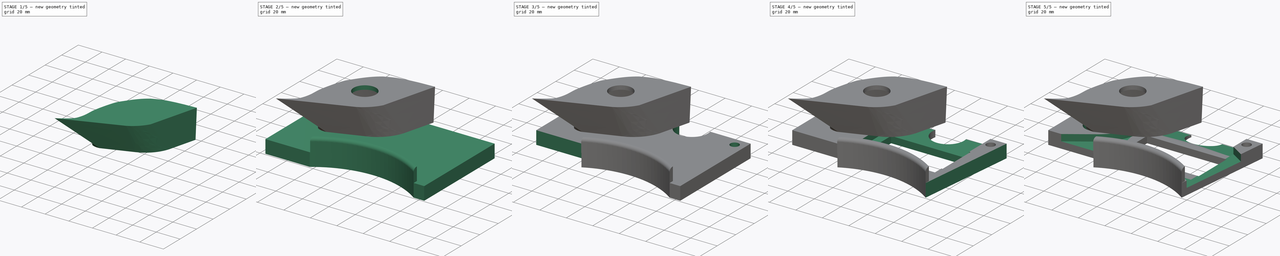
[diagram: build sequence overview — one tinted view per stage of 5, left to right]
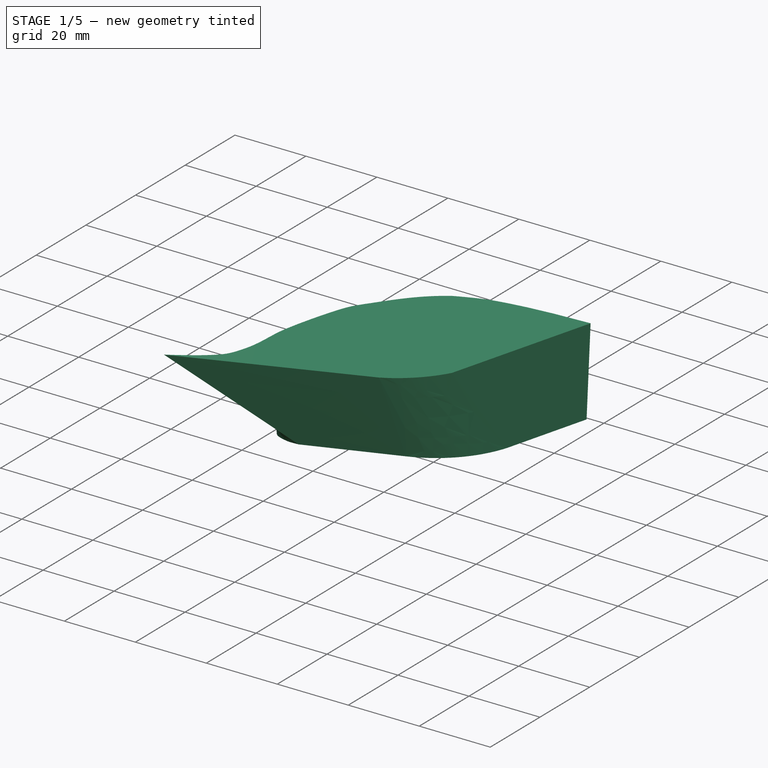
[diagram: stage 1 of 5 — iso view after this stage's code; geometry added in this stage tinted green]
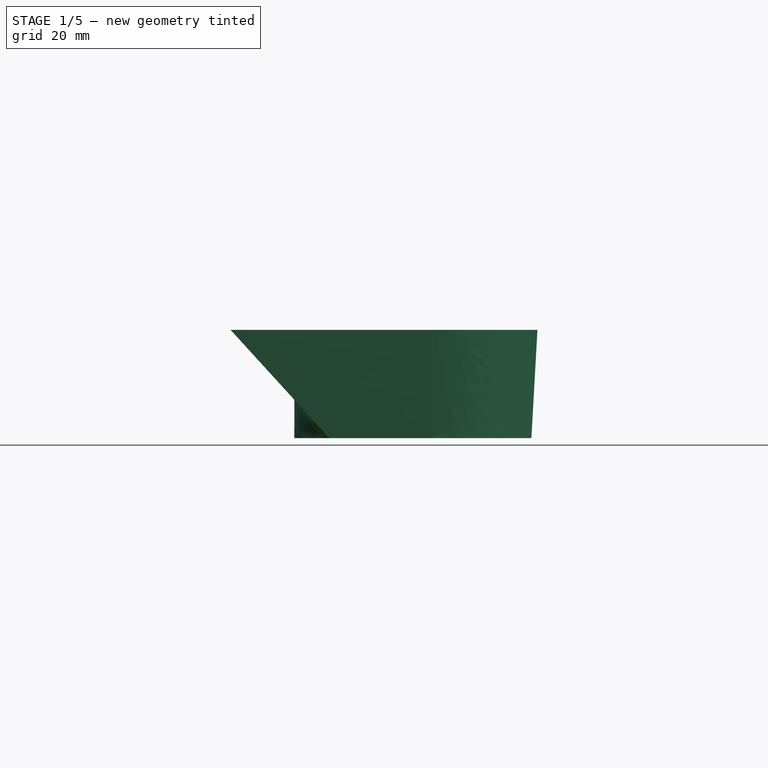
[diagram: stage 1 of 5 — front view after this stage's code; geometry added in this stage tinted green]
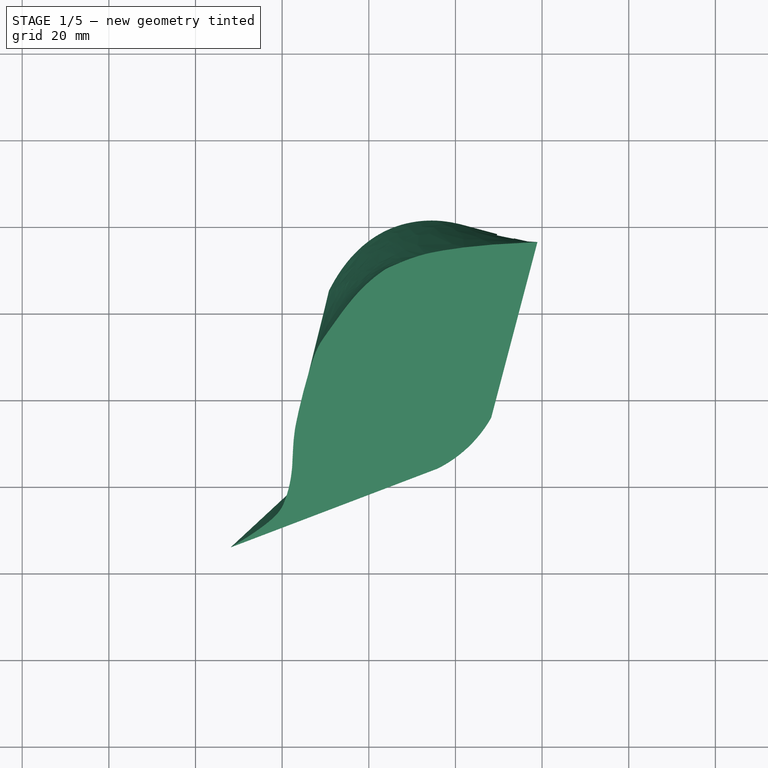
[diagram: stage 1 of 5 — top view after this stage's code; geometry added in this stage tinted green]
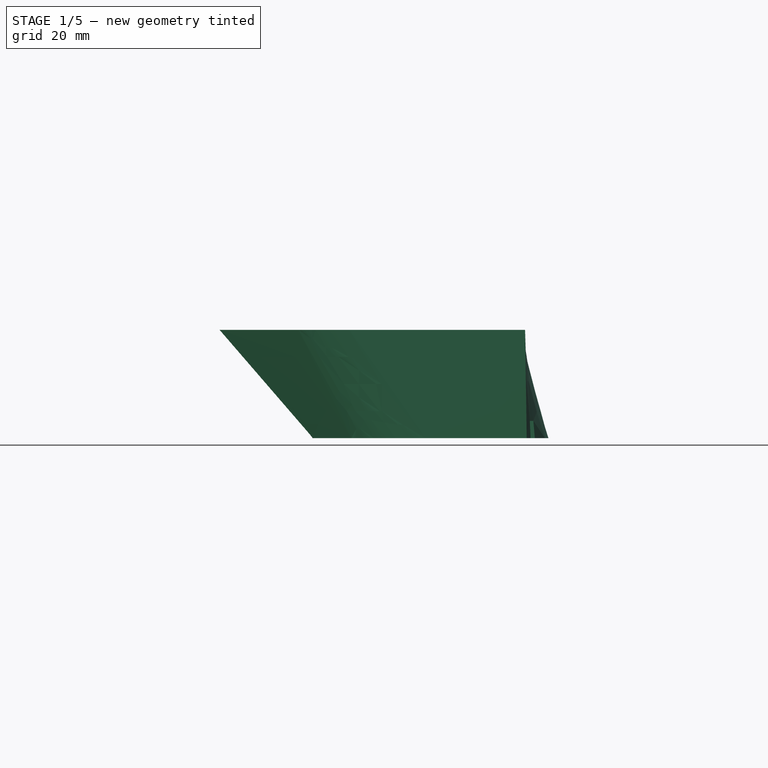
[diagram: stage 1 of 5 — right view after this stage's code; geometry added in this stage tinted green]
FCSTD DOCUMENT  (FreeCAD 1.0R39109 (Git))
Label: poweron button
License: All rights reserved
LicenseURL: http://en.wikipedia.org/wiki/All_rights_reserved
objects: PartDesign::SubtractiveCylinder×10, PartDesign::SubtractiveBox×9, Sketcher::SketchObject×8, PartDesign::AdditiveLoft×2, PartDesign::Pocket×2, PartDesign::Pad×2, PartDesign::Fillet×2, PartDesign::Body×2
note: 99 computed .brp shape members not serialized (recipe doc carries the construction recipe); baked Part::Feature solids carry a one-line shape summary decoded from their .brp

FEATURE [Sketcher::SketchObject] Sketch008  label="button Plate bottom"
  ArcFitTolerance = 1e-06
  AttachmentOffset = pos=(0,0,10) rot=(0,0,1;0rad)
  AttachmentSupport = -> [XY_Plane004]
  FullyConstrained = true
  MakeInternals = false
  MapMode = 5
  Placement = pos=(0,0,10) rot=(0,0,1;0rad)
  sketch-geometry (24):
    g0: ArcOfCircle CenterX=-34.0725 CenterY=81.318 CenterZ=0 NormalX=0 NormalY=0 NormalZ=1 AngleXU=0 Radius=26.76 StartAngle=5.05352 EndAngle=5.97418
    g1: LineSegment StartX=-8.58 StartY=73.18 StartZ=0 EndX=-2.47 EndY=96.55 EndZ=0
    g2: LineSegment StartX=-25.12 StartY=56.1 StartZ=0 EndX=-49.1 EndY=47.25 EndZ=0
    g3: Circle [constr] CenterX=-2.47 CenterY=96.55 CenterZ=0 NormalX=0 NormalY=0 NormalZ=1 AngleXU=0 Radius=1
    g4: Circle [constr] CenterX=-14.91 CenterY=99.1391 CenterZ=0 NormalX=0 NormalY=0 NormalZ=1 AngleXU=0 Radius=1
    g5: Circle [constr] CenterX=-23.98 CenterY=104.45 CenterZ=0 NormalX=0 NormalY=0 NormalZ=1 AngleXU=0 Radius=1
    g6: BSplineCurve PolesCount=12 KnotsCount=8 Degree=3 IsPeriodic=0
    g7-g12: GeomPoint [constr] x6 (B-spline internal-alignment scaffolding for g6; pole/knot coordinates omitted)
    g13-g18: Circle [constr] x6 (B-spline internal-alignment scaffolding for g6; pole/knot coordinates omitted)
    g19: GeomPoint [constr] X=-52.86 Y=47.33 Z=0
    g20: Circle [constr] CenterX=-52.92 CenterY=70.3832 CenterZ=0 NormalX=0 NormalY=0 NormalZ=1 AngleXU=0 Radius=1
    g21: Circle [constr] CenterX=-55.3066 CenterY=60.2815 CenterZ=0 NormalX=0 NormalY=0 NormalZ=1 AngleXU=0 Radius=1
    g22: Circle [constr] CenterX=-58.5146 CenterY=49.6721 CenterZ=0 NormalX=0 NormalY=0 NormalZ=1 AngleXU=0 Radius=1
    g23: GeomPoint [constr] X=-54.93 Y=62.04 Z=0
  constraints (60):
    c: Coincident(g1,g0)
    c: Coincident(g2,g0)
    c: Weight(g3) = 1
    c: Equal(g3,g4)
    c: Equal(g3,g5)
    c: InternalAlignment(g3,g6)
    c: InternalAlignment(g4,g6)
    c: InternalAlignment(g5,g6)
    c: InternalAlignment(g7-g12 -> g6) x6
    c: Coincident(g3,g1)
    c: InternalAlignment(g13,g6)
    c: Equal(g13,g3)
    c: InternalAlignment(g14,g6)
    c: Equal(g14,g3)
    c: InternalAlignment(g15,g6)
    c: Equal(g15,g3)
    c: InternalAlignment(g16,g6)
    c: Equal(g16,g3)
    c: InternalAlignment(g17,g6)
    c: Equal(g17,g3)
    c: InternalAlignment(g18,g6)
    c: Equal(g18,g3)
    c: InternalAlignment(g19,g6)
    c: InternalAlignment(g20,g6)
    c: Equal(g20,g3)
    c: InternalAlignment(g21,g6)
    c: Equal(g21,g3)
    c: InternalAlignment(g22,g6)
    c: Equal(g22,g3)
    c: InternalAlignment(g23,g6)
    c: Coincident(g2,g6)
    c: DistanceX(g6,g-1) = 2.47
    c: DistanceY(g-1,g6) = 96.55
    c: DistanceY(g-1,g0) = 73.18
    c: DistanceX(g0,g-1) = 8.58
    c: DistanceY(g-1,g0) = 56.1
    c: DistanceX(g0,g-1) = 25.12
    c: Radius(g0) = 26.76
    c: DistanceX(g8,g-1) = 26.41
    c: DistanceY(g6,g8) = 5
    c: DistanceX(g4,g6) = 12.44
    c: DistanceX(g5,g4) = 9.07
    c: Distance(g4,g8) = 11.75
    c: DistanceY(g8,g5) = 2.9
    c: DistanceX(g9,g-1) = 49.22
    c: DistanceY(g-1,g9) = 85.31
    c: DistanceY(g-1,g2) = 47.25
    c: DistanceX(g2,g-1) = 49.1
    c: DistanceY(g-1,g19) = 47.33
    c: DistanceX(g19,g2) = 3.76
    c: DistanceY(g-1,g18) = 47.06
    c: DistanceX(g18,g2) = 2.44
    c: DistanceX(g11,g19) = 4.33
    c: DistanceY(g-1,g11) = 51.98
    c: DistanceY(g-1,g10) = 66.95
    c: DistanceX(g10,g-1) = 53.72
    c: DistanceY(g-1,g23) = 62.04
    c: DistanceX(g23,g-1) = 54.93
    c: DistanceY(g-1,g14) = 77.2
    c: DistanceX(g20,g-1) = 52.92
FEATURE [Sketcher::SketchObject] Sketch009  label="button Plate top"
  ArcFitTolerance = 1e-06
  AttachmentOffset = pos=(0,0,35) rot=(0,0,1;0rad)
  AttachmentSupport = -> [XY_Plane004]
  FullyConstrained = true
  MakeInternals = false
  MapMode = 5
  Placement = pos=(0,0,35) rot=(0,0,1;0rad)
  sketch-geometry (23):
    g0: ArcOfCircle CenterX=-37.2079 CenterY=70.0359 CenterZ=0 NormalX=0 NormalY=0 NormalZ=1 AngleXU=0 Radius=29.27 StartAngle=5.17711 EndAngle=5.76711
    g1: LineSegment StartX=-11.75 StartY=55.592 StartZ=0 EndX=-1.06984 EndY=96.17 EndZ=0
    g2: LineSegment StartX=-24.09 StartY=43.87 StartZ=0 EndX=-71.91 EndY=25.66 EndZ=0
    g3: Circle [constr] CenterX=-1.06984 CenterY=96.17 CenterZ=0 NormalX=0 NormalY=0 NormalZ=1 AngleXU=0 Radius=1
    g4: Circle [constr] CenterX=-12.76 CenterY=95.7078 CenterZ=0 NormalX=0 NormalY=0 NormalZ=1 AngleXU=0 Radius=1
    g5: Circle [constr] CenterX=-23.7632 CenterY=94.2454 CenterZ=0 NormalX=0 NormalY=0 NormalZ=1 AngleXU=0 Radius=1
    g6: BSplineCurve PolesCount=12 KnotsCount=8 Degree=3 IsPeriodic=0
    g7-g12: GeomPoint [constr] x6 (B-spline internal-alignment scaffolding for g6; pole/knot coordinates omitted)
    g13-g21: Circle [constr] x9 (B-spline internal-alignment scaffolding for g6; pole/knot coordinates omitted)
    g22: GeomPoint [constr] X=-52.6145 Y=69.8151 Z=0
  constraints (56):
    c: Coincident(g1,g0)
    c: Coincident(g2,g0)
    c: Weight(g3) = 1
    c: Equal(g3,g4)
    c: Equal(g3,g5)
    c: InternalAlignment(g3,g6)
    c: InternalAlignment(g4,g6)
    c: InternalAlignment(g5,g6)
    c: InternalAlignment(g7-g12 -> g6) x6
    c: Coincident(g3,g1)
    c: InternalAlignment(g13,g6)
    c: Equal(g13,g3)
    c: InternalAlignment(g14,g6)
    c: Equal(g14,g3)
    c: InternalAlignment(g15,g6)
    c: Equal(g15,g3)
    c: InternalAlignment(g16-g19 -> g6) x4
    c: Equal(g19,g3)
    c: InternalAlignment(g20,g6)
    c: InternalAlignment(g21,g6)
    c: InternalAlignment(g22,g6)
    c: Coincident(g2,g6)
    c: DistanceX(g0,g-1) = 24.09
    c: Distance(g0,g0) = 17.02
    c: DistanceX(g0,g-1) = 11.75
    c: DistanceY(g-1,g6) = 96.17
    c: Distance(g0,g6) = 41.96
    c: Radius(g0) = 29.27
    c: DistanceX(g11,g0) = 19.76
    c: DistanceX(g20,g0) = 15.64
    c: DistanceY(g11,g20) = 17.32
    c: DistanceY(g-1,g2) = 25.66
    c: DistanceX(g2,g-1) = 71.91
    c: DistanceY(g18,g17) = 9.57
    c: DistanceY(g17,g21) = 7.69
    c: DistanceY(g2,g11) = 27.64
    c: DistanceY(g2,g18) = 6.21
    c: DistanceX(g18,g-1) = 61.49
    c: DistanceX(g17,g0) = 32.3
    c: Weight(g21) = 3.36
    c: DistanceY(g20,g10) = 3.9
    c: DistanceY(g10,g19) = 5.56
    c: DistanceY(g19,g9) = 9.93
    c: DistanceX(g9,g-1) = 36
    c: DistanceX(g10,g19) = 3.96
    c: DistanceX(g19,g9) = 10.13
    c: DistanceX(g8,g-1) = 22.47
    c: DistanceY(g9,g8) = 4.28
    c: Distance(g22,g14) = 18.9
    c: Distance(g13,g14) = 14.73
    c: Distance(g5,g13) = 5.97
    c: Distance(g5,g4) = 11.1
    c: DistanceX(g4,g-1) = 12.76
    c: DistanceY(g-1,g0) = 43.87
    c: Weight(g18) = 1
    c: Weight(g16) = 1
FEATURE [PartDesign::AdditiveLoft] AdditiveLoft001
  Closed = false
  Profile = -> Sketch008
  Ruled = false
  Sections = -> [Sketch009]
  Suppressed = false
FEATURE [Sketcher::SketchObject] Sketch010
  ArcFitTolerance = 1e-06
  AttachmentOffset = pos=(0,0,-3) rot=(0,0,1;0rad)
  AttachmentSupport = -> [AdditiveLoft001]
  FullyConstrained = true
  MakeInternals = false
  MapMode = 5
  Placement = pos=(0,0,32) rot=(0,0,1;0rad)
  sketch-geometry (7):
    g0: ArcOfCircle CenterX=-50.0968 CenterY=44.6571 CenterZ=0 NormalX=0 NormalY=0 NormalZ=1 AngleXU=0 Radius=4.92 StartAngle=2.86513 EndAngle=5.04078
    g1: ArcOfCircle CenterX=-16.7359 CenterY=52.0831 CenterZ=0 NormalX=0 NormalY=0 NormalZ=1 AngleXU=0 Radius=36 StartAngle=1.81671 EndAngle=2.71435
    g2: LineSegment StartX=-54.83 StartY=46 StartZ=0 EndX=-49.5 EndY=67 EndZ=0
    g3: ArcOfCircle CenterX=-32.293 CenterY=62.2412 CenterZ=0 NormalX=0 NormalY=0 NormalZ=1 AngleXU=0 Radius=16 StartAngle=5.18567 EndAngle=5.58859
    g4: LineSegment StartX=-48.51 StartY=40 StartZ=0 EndX=-25 EndY=48 EndZ=0
    g5: LineSegment StartX=-20 StartY=52 StartZ=0 EndX=-8.5 EndY=84 EndZ=0
    g6: LineSegment StartX=-25.5 StartY=87 StartZ=0 EndX=-8.5 EndY=84 EndZ=0
  constraints (24):
    c: Coincident(g2,g0)
    c: Coincident(g1,g2)
    c: Coincident(g4,g0)
    c: Coincident(g4,g3)
    c: Coincident(g5,g3)
    c: Coincident(g6,g1)
    c: Coincident(g6,g5)
    c: DistanceX(g5,g-1) = 8.5
    c: DistanceY(g-1,g5) = 84
    c: DistanceX(g1,g5) = 17
    c: DistanceY(g3,g5) = 32
    c: DistanceX(g3,g-1) = 20
    c: DistanceX(g3,g-1) = 25
    c: Radius(g3) = 16
    c: DistanceY(g3,g3) = 4
    c: DistanceY(g-1,g0) = 40
    c: DistanceX(g0,g3) = 23.51
    c: Radius(g0) = 4.92
    c: DistanceY(g-1,g0) = 46
    c: DistanceX(g0,g0) = 6.32
    c: DistanceY(g0,g1) = 21
    c: DistanceY(g1,g1) = 20
    c: DistanceX(g1,g1) = 24
    c: Radius(g1) = 36
FEATURE [PartDesign::Pocket] Pocket001
  AlongSketchNormal = false
  BaseFeature = -> AdditiveLoft001
  Direction = (-0.5,-8,16)
  Length = 25
  Length2 = 10
  Profile = -> Sketch010
  ReferenceAxis = -> Sketch010 [N_Axis]
  Reversed = true
  Suppressed = false
  Type = 0
  UseCustomVector = true
FEATURE [Sketcher::SketchObject] Sketch
  ArcFitTolerance = 1e-06
  AttachmentOffset = pos=(0,0,10) rot=(0,0,1;0rad)
  AttachmentSupport = -> [XY_Plane004]
  FullyConstrained = true
  MakeInternals = false
  MapMode = 5
  Placement = pos=(0,0,10) rot=(0,0,1;0rad)
  sketch-geometry (6):
    g0: LineSegment StartX=-19 StartY=98.15 StartZ=0 EndX=-29.54 EndY=55.65 EndZ=0
    g1: LineSegment StartX=-19 StartY=98.15 StartZ=0 EndX=-4.15 EndY=95.15 EndZ=0
    g2: LineSegment StartX=-4.15 StartY=95.15 StartZ=0 EndX=-15.25 EndY=63.73 EndZ=0
    g3: LineSegment StartX=-15.25 StartY=63.73 StartZ=0 EndX=-19.35 EndY=60.2 EndZ=0
    g4: LineSegment StartX=-19.35 StartY=60.2 StartZ=0 EndX=-23.6 EndY=57.32 EndZ=0
    g5: LineSegment StartX=-23.6 StartY=57.32 StartZ=0 EndX=-29.54 EndY=55.65 EndZ=0
  constraints (18):
    c: Coincident(g0,g1)
    c: Coincident(g1,g2)
    c: Coincident(g2,g3)
    c: Coincident(g3,g4)
    c: Coincident(g4,g5)
    c: Coincident(g0,g5)
    c: DistanceY(g-1,g0) = 55.65
    c: DistanceX(g0,g-1) = 19
    c: DistanceX(g1,g-1) = 4.15
    c: DistanceY(g-1,g1) = 95.15
    c: DistanceY(g0,g0) = 42.5
    c: DistanceX(g2,g-1) = 15.25
    c: DistanceX(g3,g2) = 4.1
    c: DistanceX(g4,g3) = 4.25
    c: DistanceX(g0,g4) = 5.94
    c: DistanceY(g-1,g4) = 57.32
    c: DistanceY(g4,g3) = 2.88
    c: DistanceY(g3,g2) = 3.53
FEATURE [Sketcher::SketchObject] Sketch014
  ArcFitTolerance = 1e-06
  AttachmentOffset = pos=(0,0,17) rot=(0,0,1;0rad)
  AttachmentSupport = -> [XY_Plane004]
  FullyConstrained = true
  MakeInternals = false
  MapMode = 5
  Placement = pos=(0,0,17) rot=(0,0,1;0rad)
  sketch-geometry (6):
    g0: LineSegment StartX=-19.04 StartY=98.0941 StartZ=0 EndX=-29.35 EndY=53 EndZ=0
    g1: LineSegment StartX=-19.04 StartY=98.0941 StartZ=0 EndX=-4.12 EndY=95.19 EndZ=0
    g2: LineSegment StartX=-4.12 StartY=95.19 StartZ=0 EndX=-13.61 EndY=64.47 EndZ=0
    g3: LineSegment StartX=-13.61 StartY=64.47 StartZ=0 EndX=-18.81 EndY=57.7505 EndZ=0
    g4: LineSegment StartX=-18.81 StartY=57.7505 StartZ=0 EndX=-24.15 EndY=54.7607 EndZ=0
    g5: LineSegment StartX=-24.15 StartY=54.7607 StartZ=0 EndX=-29.35 EndY=53 EndZ=0
  constraints (18):
    c: Coincident(g0,g1)
    c: Coincident(g1,g2)
    c: Coincident(g2,g3)
    c: Coincident(g3,g4)
    c: Coincident(g4,g5)
    c: Coincident(g0,g5)
    c: Distance(g1,g1) = 15.2
    c: DistanceX(g1,g-1) = 4.12
    c: DistanceY(g-1,g1) = 95.19
    c: DistanceX(g0,g-1) = 19.04
    c: DistanceX(g2,g-1) = 13.61
    c: DistanceY(g-1,g2) = 64.47
    c: DistanceX(g3,g2) = 5.2
    c: DistanceX(g4,g3) = 5.34
    c: DistanceX(g0,g4) = 5.2
    c: DistanceY(g-1,g0) = 53
    c: Distance(g4,g0) = 5.49
    c: Distance(g3,g4) = 6.12
FEATURE [PartDesign::AdditiveLoft] AdditiveLoft
  BaseFeature = -> Pocket001
  Closed = false
  Profile = -> Sketch
  Ruled = false
  Sections = -> [Sketch014]
  Suppressed = false
FEATURE [PartDesign::SubtractiveBox] Box009
  AttacherType = Attacher::AttachEngine3D
  AttachmentOffset = pos=(-15.5,83.5,10) rot=(0,0,-1;0.331613rad)
  AttachmentSupport = -> [XY_Plane004]
  BaseFeature = -> AdditiveLoft
  Height = 4
  Length = 4
  MapMode = 5
  Placement = pos=(-15.5,83.5,10) rot=(0,0,-1;0.331613rad)
  Suppressed = false
  Width = 16.5
FEATURE [PartDesign::SubtractiveCylinder] Cylinder006
  Angle = 360
  AttacherType = Attacher::AttachEngine3D
  AttachmentOffset = pos=(-18,87,10) rot=(0,0,1;0rad)
  AttachmentSupport = -> [XY_Plane004]
  BaseFeature = -> Box009
  FirstAngle = 0
  Height = 7
  MapMode = 5
  Placement = pos=(-18,87,10) rot=(0,0,1;0rad)
  Radius = 1.5
  SecondAngle = 0
  Suppressed = false
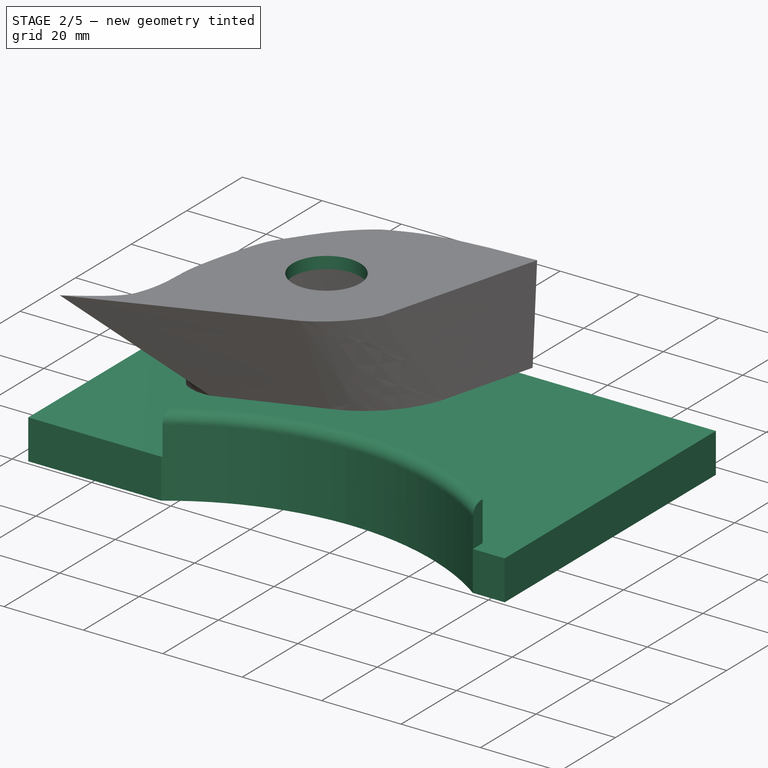
[diagram: stage 2 of 5 — iso view after this stage's code; geometry added in this stage tinted green]
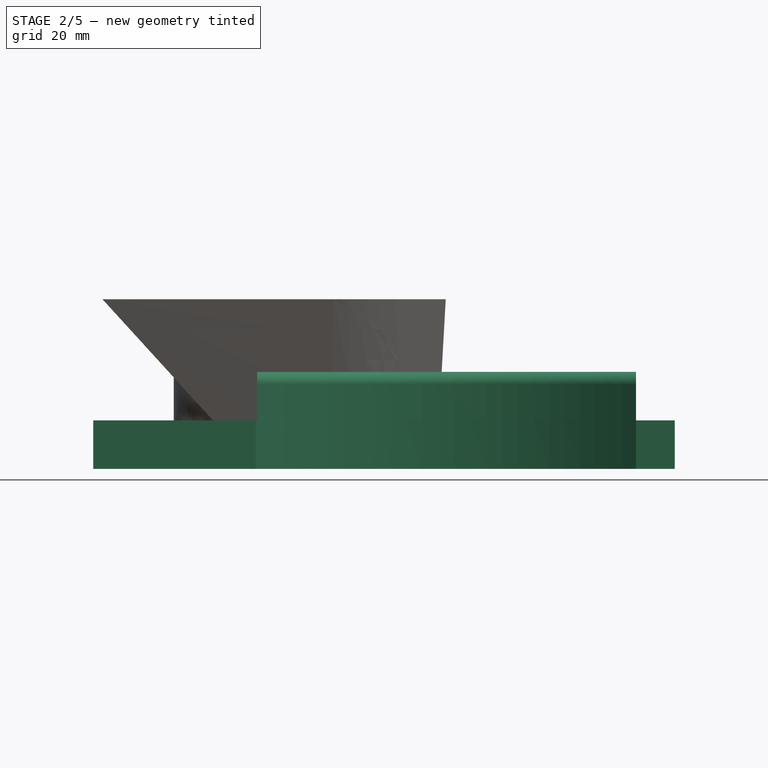
[diagram: stage 2 of 5 — front view after this stage's code; geometry added in this stage tinted green]
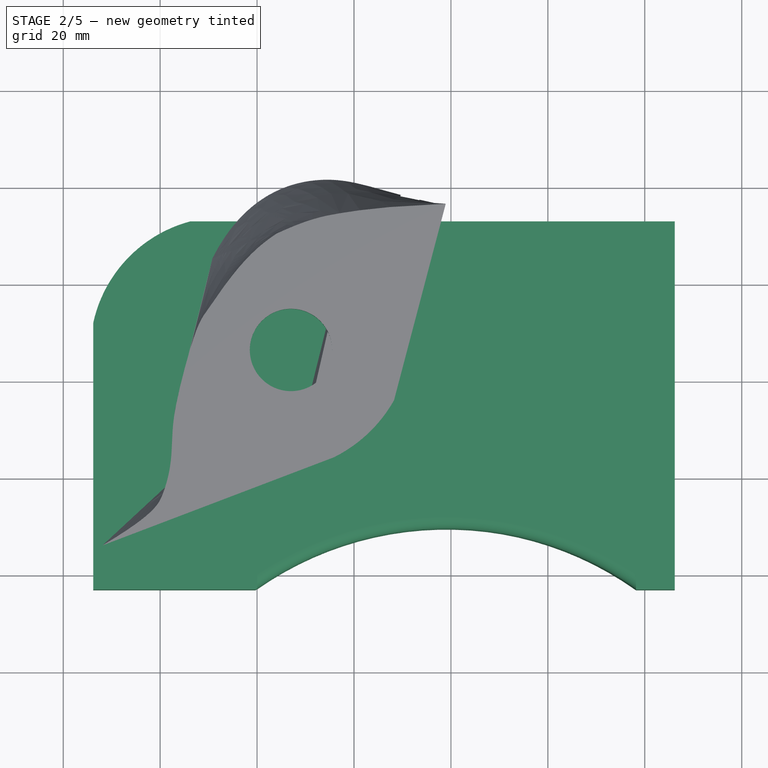
[diagram: stage 2 of 5 — top view after this stage's code; geometry added in this stage tinted green]
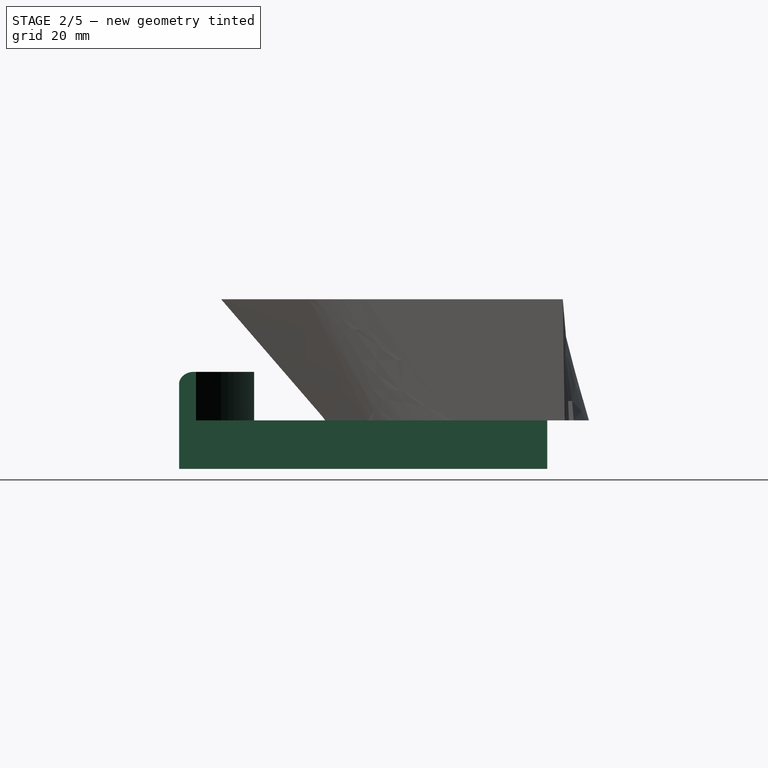
[diagram: stage 2 of 5 — right view after this stage's code; geometry added in this stage tinted green]
FEATURE [Sketcher::SketchObject] Sketch012
  ArcFitTolerance = 1e-06
  AttachmentSupport = -> [XY_Plane005]
  FullyConstrained = true
  MakeInternals = false
  MapMode = 5
  sketch-geometry (7):
    g0: LineSegment StartX=-53.81 StartY=92.96 StartZ=0 EndX=46.19 EndY=92.96 EndZ=0
    g1: LineSegment StartX=-73.81 StartY=72 StartZ=0 EndX=-73.81 EndY=17 EndZ=0
    g2: LineSegment StartX=-73.81 StartY=17 StartZ=0 EndX=-40.31 EndY=17 EndZ=0
    g3: LineSegment StartX=38.19 StartY=17 StartZ=0 EndX=46.19 EndY=17 EndZ=0
    g4: LineSegment StartX=46.19 StartY=17 StartZ=0 EndX=46.19 EndY=92.96 EndZ=0
    g5: ArcOfCircle CenterX=-46.6688 CenterY=66.1239 CenterZ=0 NormalX=0 NormalY=0 NormalZ=1 AngleXU=0 Radius=27.77 StartAngle=1.83087 EndAngle=2.92838
    g6: ArcOfCircle CenterX=-1.06 CenterY=-38.0504 CenterZ=0 NormalX=0 NormalY=0 NormalZ=1 AngleXU=0 Radius=67.61 StartAngle=0.95141 EndAngle=2.19018
  constraints (23):
    c: Horizontal(g0)
    c: Vertical(g1)
    c: Horizontal(g3)
    c: Vertical(g4)
    c: Parallel(g2,g-1)
    c: DistanceX(g2,g-1) = 40.31
    c: DistanceY(g-1,g2) = 17
    c: DistanceX(g2,g2) = 33.5
    c: Coincident(g2,g1)
    c: DistanceY(g1,g1) = 55
    c: Coincident(g5,g1)
    c: Radius(g5) = 27.77
    c: DistanceY(g1,g5) = 20.96
    c: DistanceX(g1,g5) = 20
    c: Coincident(g5,g0)
    c: DistanceX(g0,g0) = 100
    c: Coincident(g0,g4)
    c: DistanceY(g4,g4) = 75.96
    c: Coincident(g3,g4)
    c: DistanceX(g3,g3) = 8
    c: Coincident(g6,g2)
    c: Coincident(g6,g3)
    c: Radius(g6) = 67.61
FEATURE [PartDesign::Pad] Pad002
  Direction = (0,0,1)
  Length = 10
  Length2 = 10
  Profile = -> Sketch012
  ReferenceAxis = -> Sketch012 [N_Axis]
  Suppressed = false
  Type = 0
FEATURE [Sketcher::SketchObject] Sketch013
  ArcFitTolerance = 1e-06
  AttachmentSupport = -> [Pad002]
  FullyConstrained = true
  MakeInternals = false
  MapMode = 5
  Placement = pos=(0,0,10) rot=(0,0,1;0rad)
  sketch-geometry (4):
    g0: ArcOfCircle CenterX=-0.900216 CenterY=-38.68 CenterZ=0 NormalX=0 NormalY=0 NormalZ=1 AngleXU=0 Radius=68.0317 StartAngle=0.958695 EndAngle=2.18307
    g1: LineSegment StartX=-40 StartY=20.4933 StartZ=0 EndX=-40 EndY=16.9933 EndZ=0
    g2: LineSegment StartX=38.19 StartY=20.5 StartZ=0 EndX=38.19 EndY=17 EndZ=0
    g3: ArcOfCircle CenterX=-0.900039 CenterY=-37.23 CenterZ=0 NormalX=0 NormalY=0 NormalZ=1 AngleXU=0 Radius=69.7193 StartAngle=0.975593 EndAngle=2.16617
  constraints (14):
    c: DistanceX(g-1,g0) = 38.19
    c: DistanceY(g-1,g0) = 17
    c: DistanceX(g0,g-1) = 40
    c: Distance(g-1,g0) = 43.46
    c: DistanceY(g0,g-1) = 38.68
    c: Vertical(g1)
    c: Vertical(g2)
    c: Coincident(g0,g1)
    c: Coincident(g0,g2)
    c: Equal(g2,g1)
    c: DistanceY(g1,g1) = 3.5
    c: Coincident(g3,g1)
    c: Coincident(g3,g2)
    c: DistanceY(g3,g-1) = 37.23
FEATURE [PartDesign::Pad] Pad003
  BaseFeature = -> Pad002
  Direction = (0,0,1)
  Length = 10
  Length2 = 10
  Profile = -> Sketch013
  ReferenceAxis = -> Sketch013 [N_Axis]
  Suppressed = false
  Type = 0
FEATURE [PartDesign::Fillet] Fillet
  Base = -> Pad003 [Edge35]
  BaseFeature = -> Pad003
  Radius = 2.5
  SupportTransform = false
  Suppressed = false
  UseAllEdges = false
FEATURE [PartDesign::SubtractiveCylinder] Cylinder007
  Angle = 360
  AttacherType = Attacher::AttachEngine3D
  AttachmentOffset = pos=(-22.9,67.7,10) rot=(0,0,1;0rad)
  AttachmentSupport = -> [XY_Plane004]
  BaseFeature = -> Cylinder006
  FirstAngle = 0
  Height = 7
  MapMode = 5
  Placement = pos=(-22.9,67.7,10) rot=(0,0,1;0rad)
  Radius = 1.5
  SecondAngle = 0
  Suppressed = false
FEATURE [PartDesign::SubtractiveCylinder] Cylinder008
  Angle = 360
  AttacherType = Attacher::AttachEngine3D
  AttachmentOffset = pos=(-33,66,30) rot=(0,0,1;0rad)
  AttachmentSupport = -> [XY_Plane004]
  BaseFeature = -> Cylinder007
  FirstAngle = 0
  Height = 5
  MapMode = 5
  Placement = pos=(-33,66,30) rot=(0,0,1;0rad)
  Radius = 8.5
  SecondAngle = 0
  Suppressed = false
FEATURE [PartDesign::Body] Body005  label="base"
  AllowCompound = false
  Group = -> [Sketch012,Pad002,Sketch013,Pad003,Fillet,Box013,Cylinder009,Cylinder010,Cylinder011,Cylinder012,Cylinder013,Cylinder014,Cylinder015,Box014,Box015,Box016,Box017,Box018,Box019,Fillet001,Sketch015,Pocket]
  Origin = -> Origin005
  Tip = -> Pocket
FEATURE [PartDesign::SubtractiveBox] Box
  AttacherType = Attacher::AttachEngine3D
  AttachmentOffset = pos=(-15.5,83.5,14) rot=(0,0,-1;0.331613rad)
  AttachmentSupport = -> [XY_Plane004]
  BaseFeature = -> Cylinder008
  Height = 3
  Length = 4
  MapMode = 5
  Placement = pos=(-15.5,83.5,14) rot=(0,0,-1;0.331613rad)
  Suppressed = false
  Width = 9
FEATURE [PartDesign::Body] Body004  label="powerButton"
  AllowCompound = false
  Group = -> [Sketch008,Sketch009,AdditiveLoft001,Sketch010,Pocket001,AdditiveLoft,Box009,Cylinder006,Cylinder007,Cylinder008,Sketch,Sketch014,Box]
  Origin = -> Origin004
  Placement = pos=(-5.41347,-0.147878,0) rot=(0,0,-1;6.03884rad)
  Tip = -> Box
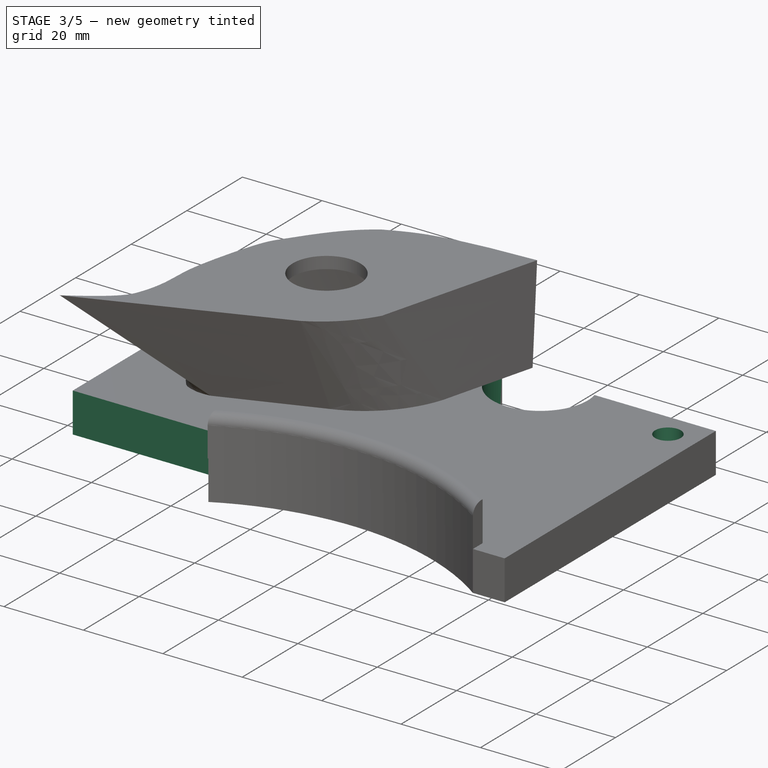
[diagram: stage 3 of 5 — iso view after this stage's code; geometry added in this stage tinted green]
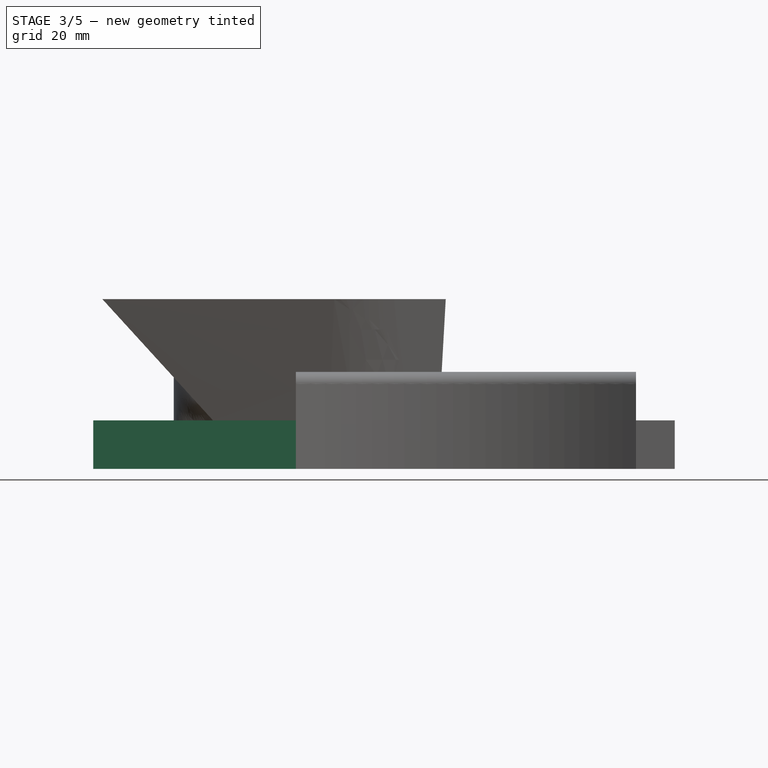
[diagram: stage 3 of 5 — front view after this stage's code; geometry added in this stage tinted green]
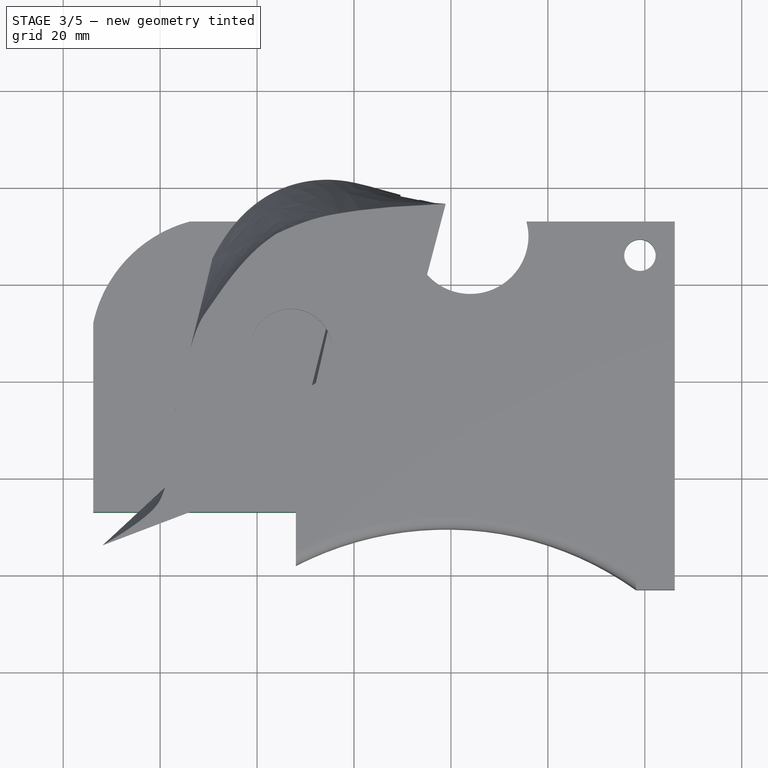
[diagram: stage 3 of 5 — top view after this stage's code; geometry added in this stage tinted green]
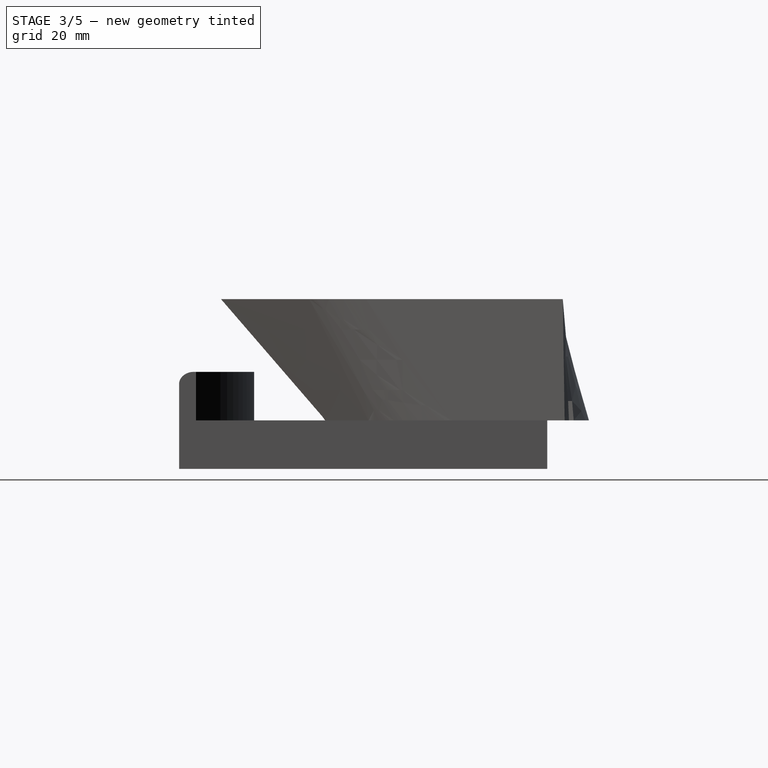
[diagram: stage 3 of 5 — right view after this stage's code; geometry added in this stage tinted green]
FEATURE [PartDesign::SubtractiveBox] Box013
  AttacherType = Attacher::AttachEngine3D
  AttachmentOffset = pos=(-74,13,0) rot=(0,0,1;0rad)
  AttachmentSupport = -> [XY_Plane005]
  BaseFeature = -> Fillet
  Height = 20
  Length = 42
  MapMode = 5
  Placement = pos=(-74,13,0) rot=(0,0,1;0rad)
  Suppressed = false
  Width = 20
FEATURE [PartDesign::SubtractiveCylinder] Cylinder009
  Angle = 360
  AttacherType = Attacher::AttachEngine3D
  AttachmentOffset = pos=(4,90,0) rot=(0,0,1;0rad)
  AttachmentSupport = -> [XY_Plane005]
  BaseFeature = -> Box013
  FirstAngle = 0
  Height = 10
  MapMode = 5
  Placement = pos=(4,90,0) rot=(0,0,1;0rad)
  Radius = 12
  SecondAngle = 0
  Suppressed = false
FEATURE [PartDesign::SubtractiveCylinder] Cylinder010
  Angle = 360
  AttacherType = Attacher::AttachEngine3D
  AttachmentOffset = pos=(39,86,0) rot=(0,0,1;0rad)
  AttachmentSupport = -> [XY_Plane005]
  BaseFeature = -> Cylinder009
  FirstAngle = 0
  Height = 4
  MapMode = 5
  Placement = pos=(39,86,0) rot=(0,0,1;0rad)
  Radius = 5
  SecondAngle = 0
  Suppressed = false
FEATURE [PartDesign::SubtractiveCylinder] Cylinder011
  Angle = 360
  AttacherType = Attacher::AttachEngine3D
  AttachmentOffset = pos=(39,86,0) rot=(0,0,1;0rad)
  AttachmentSupport = -> [XY_Plane005]
  BaseFeature = -> Cylinder010
  FirstAngle = 0
  Height = 10
  MapMode = 5
  Placement = pos=(39,86,0) rot=(0,0,1;0rad)
  Radius = 3.25
  SecondAngle = 0
  Suppressed = false
FEATURE [PartDesign::SubtractiveCylinder] Cylinder012
  Angle = 360
  AttacherType = Attacher::AttachEngine3D
  AttachmentOffset = pos=(-43.9,79.9,0) rot=(0,0,1;0rad)
  AttachmentSupport = -> [XY_Plane005]
  BaseFeature = -> Cylinder011
  FirstAngle = 0
  Height = 10
  MapMode = 5
  Placement = pos=(-43.9,79.9,0) rot=(0,0,1;0rad)
  Radius = 2
  SecondAngle = 0
  Suppressed = false
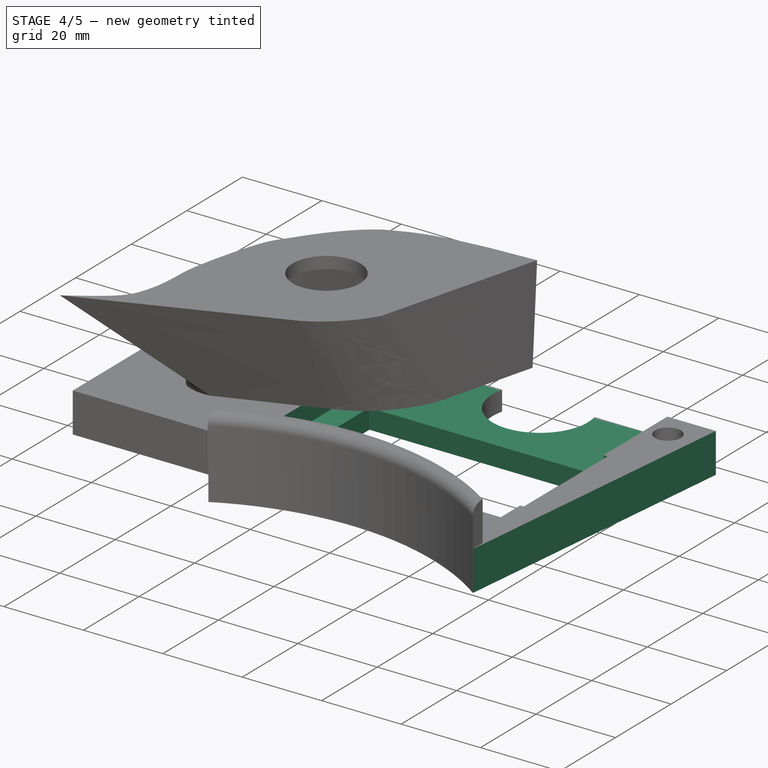
[diagram: stage 4 of 5 — iso view after this stage's code; geometry added in this stage tinted green]
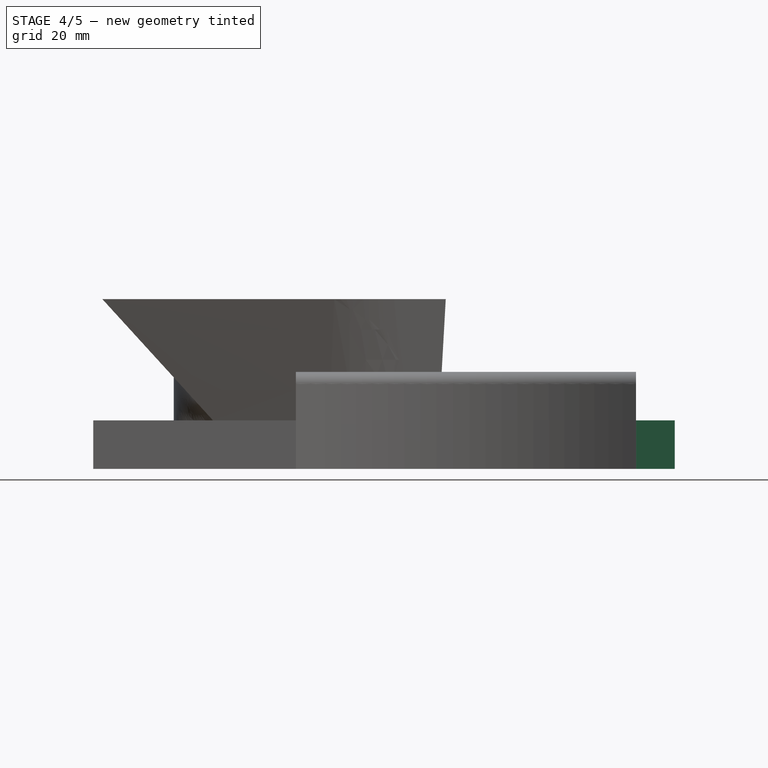
[diagram: stage 4 of 5 — front view after this stage's code; geometry added in this stage tinted green]
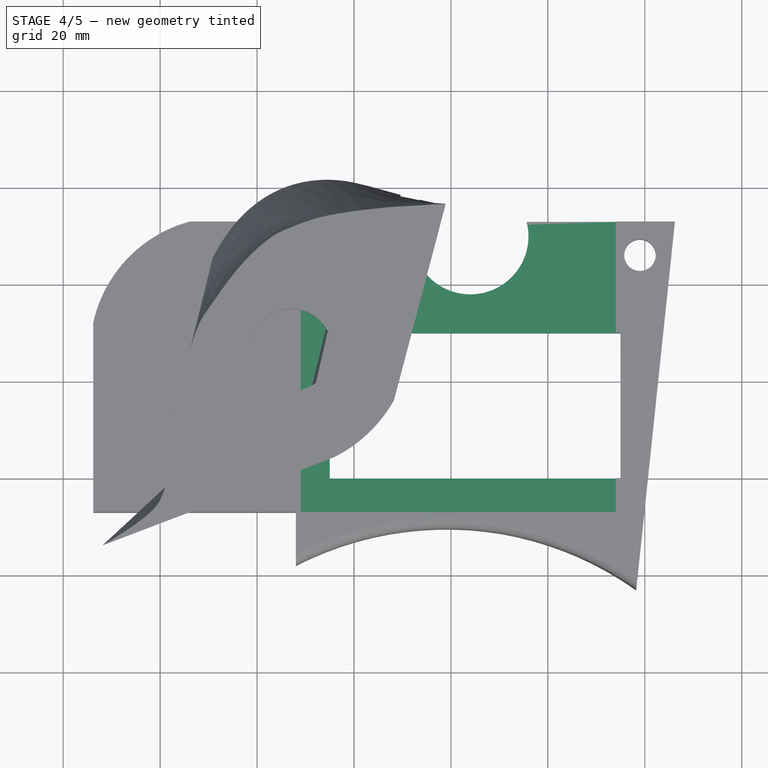
[diagram: stage 4 of 5 — top view after this stage's code; geometry added in this stage tinted green]
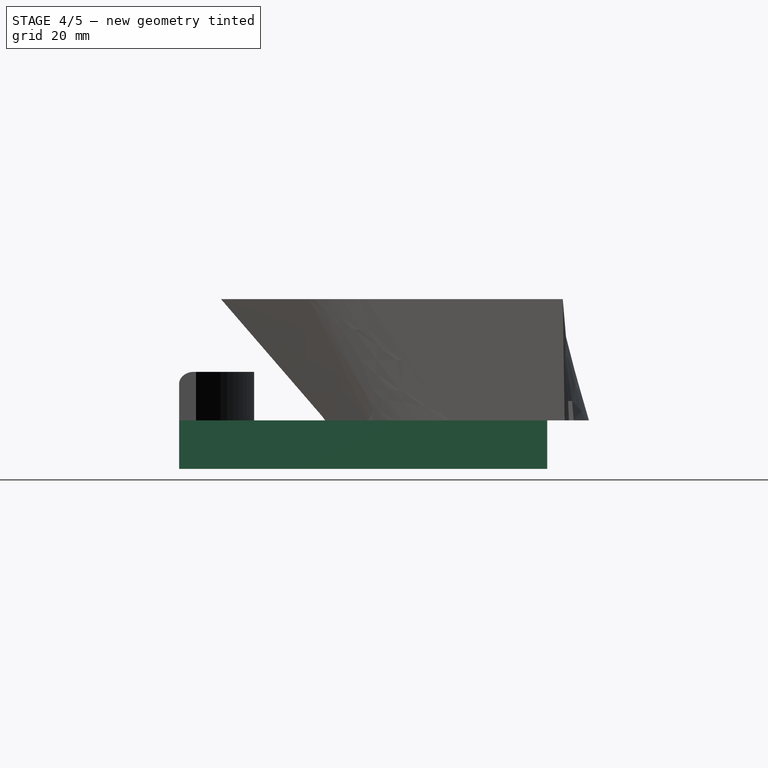
[diagram: stage 4 of 5 — right view after this stage's code; geometry added in this stage tinted green]
FEATURE [PartDesign::SubtractiveCylinder] Cylinder013
  Angle = 360
  AttacherType = Attacher::AttachEngine3D
  AttachmentOffset = pos=(-44,60,0) rot=(0,0,1;0rad)
  AttachmentSupport = -> [XY_Plane005]
  BaseFeature = -> Cylinder012
  FirstAngle = 0
  Height = 10
  MapMode = 5
  Placement = pos=(-44,60,0) rot=(0,0,1;0rad)
  Radius = 2
  SecondAngle = 0
  Suppressed = false
FEATURE [PartDesign::SubtractiveCylinder] Cylinder014
  Angle = 360
  AttacherType = Attacher::AttachEngine3D
  AttachmentOffset = pos=(-43.9,79.9,0) rot=(0,0,1;0rad)
  AttachmentSupport = -> [XY_Plane005]
  BaseFeature = -> Cylinder013
  FirstAngle = 0
  Height = 4
  MapMode = 5
  Placement = pos=(-43.9,79.9,0) rot=(0,0,1;0rad)
  Radius = 3
  SecondAngle = 0
  Suppressed = false
FEATURE [PartDesign::SubtractiveCylinder] Cylinder015
  Angle = 360
  AttacherType = Attacher::AttachEngine3D
  AttachmentOffset = pos=(-44,60,0) rot=(0,0,1;0rad)
  AttachmentSupport = -> [XY_Plane005]
  BaseFeature = -> Cylinder014
  FirstAngle = 0
  Height = 4
  MapMode = 5
  Placement = pos=(-44,60,0) rot=(0,0,1;0rad)
  Radius = 3
  SecondAngle = 0
  Suppressed = false
FEATURE [PartDesign::SubtractiveBox] Box014
  AttacherType = Attacher::AttachEngine3D
  AttachmentOffset = pos=(47.85,13,0) rot=(0,0,1;1.46608rad)
  AttachmentSupport = -> [XY_Plane005]
  BaseFeature = -> Cylinder015
  Height = 10
  Length = 83
  MapMode = 5
  Placement = pos=(47.85,13,0) rot=(0,0,1;1.46608rad)
  Suppressed = false
  Width = 10
FEATURE [PartDesign::SubtractiveBox] Box015
  AttacherType = Attacher::AttachEngine3D
  AttachmentOffset = pos=(-25,40,0) rot=(0,0,1;0rad)
  AttachmentSupport = -> [XY_Plane005]
  BaseFeature = -> Box014
  Height = 10
  Length = 60
  MapMode = 5
  Placement = pos=(-25,40,0) rot=(0,0,1;0rad)
  Suppressed = false
  Width = 30
FEATURE [PartDesign::SubtractiveBox] Box016
  AttacherType = Attacher::AttachEngine3D
  AttachmentOffset = pos=(-31,33,5) rot=(0,0,1;0rad)
  AttachmentSupport = -> [XY_Plane005]
  BaseFeature = -> Box015
  Height = 10
  Length = 65
  MapMode = 5
  Placement = pos=(-31,33,5) rot=(0,0,1;0rad)
  Suppressed = false
  Width = 62
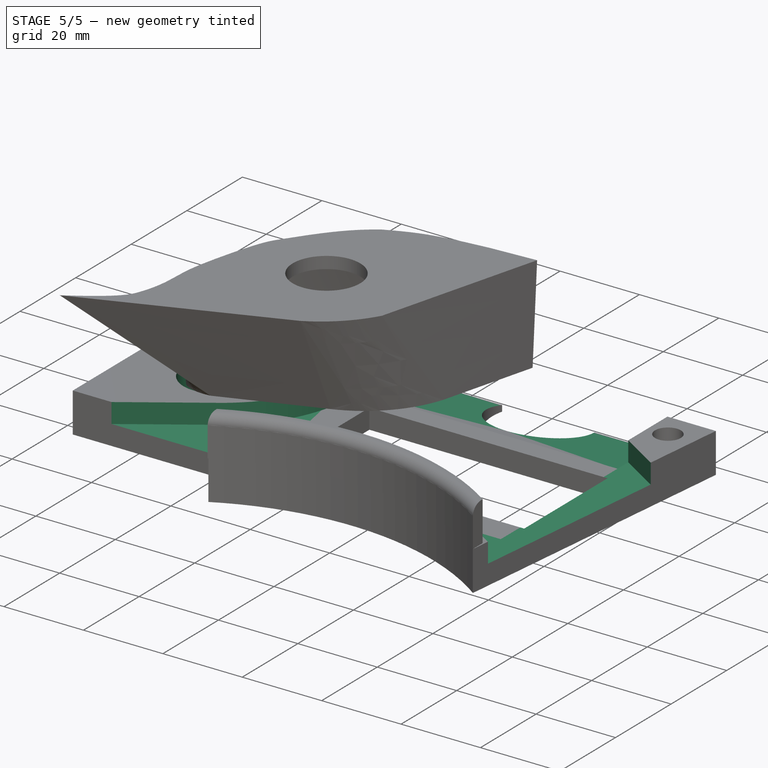
[diagram: stage 5 of 5 — iso view after this stage's code; geometry added in this stage tinted green]
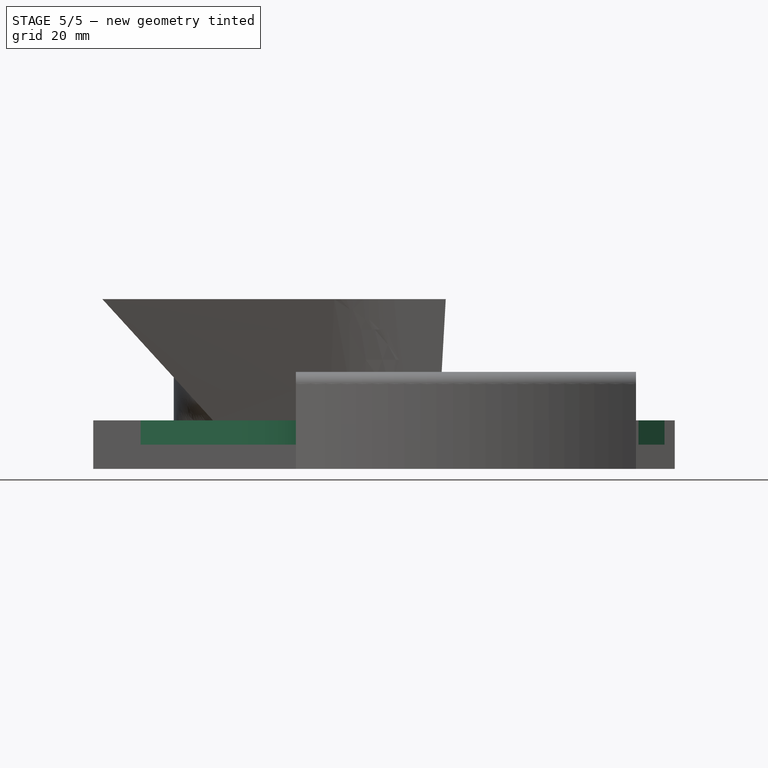
[diagram: stage 5 of 5 — front view after this stage's code; geometry added in this stage tinted green]
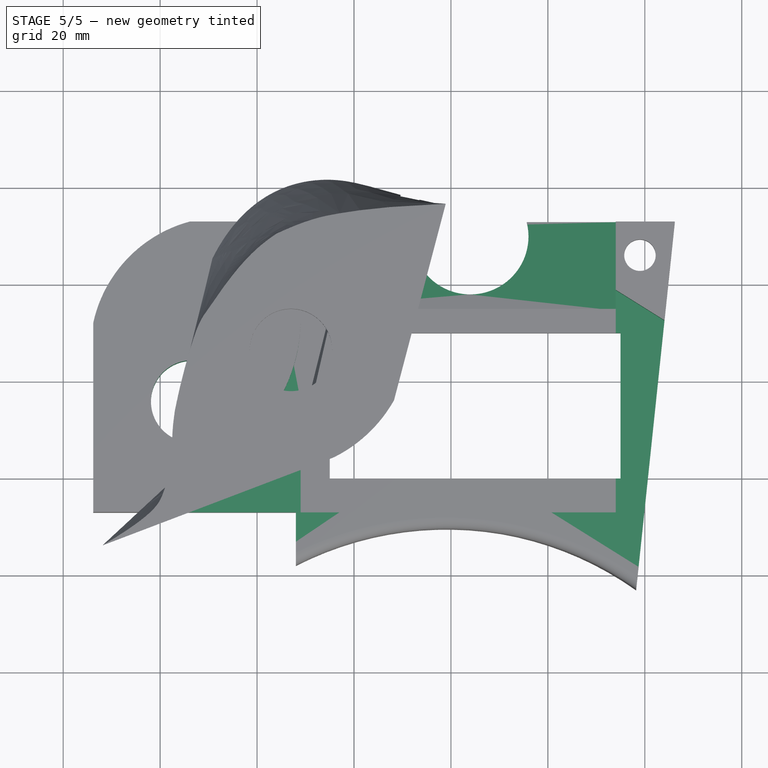
[diagram: stage 5 of 5 — top view after this stage's code; geometry added in this stage tinted green]
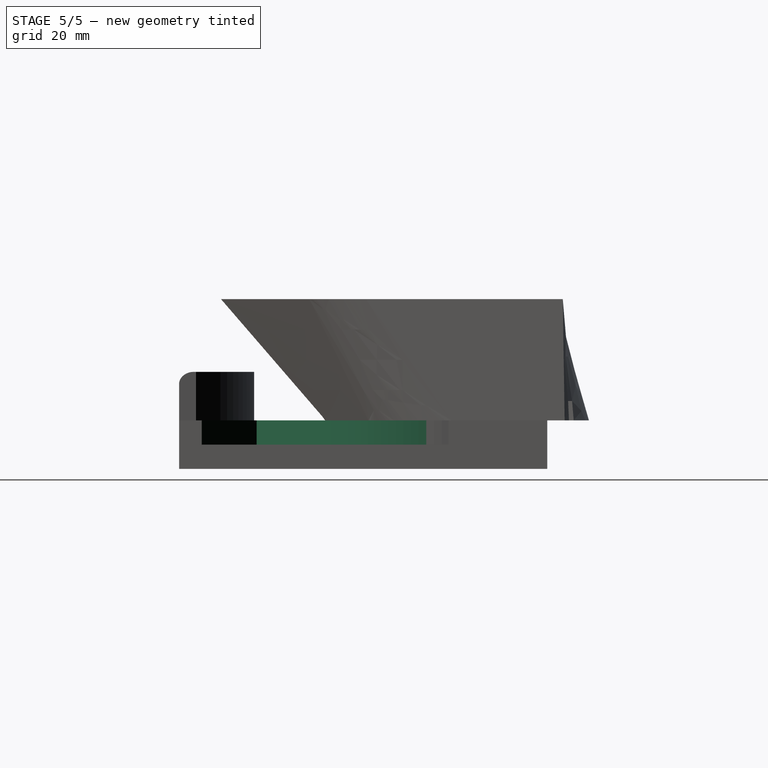
[diagram: stage 5 of 5 — right view after this stage's code; geometry added in this stage tinted green]
FEATURE [PartDesign::SubtractiveBox] Box017
  AttacherType = Attacher::AttachEngine3D
  AttachmentOffset = pos=(-57,10,5) rot=(0,0,1;0.593412rad)
  AttachmentSupport = -> [XY_Plane005]
  BaseFeature = -> Box016
  Height = 5
  Length = 47
  MapMode = 5
  Placement = pos=(-57,10,5) rot=(0,0,1;0.593412rad)
  Suppressed = false
  Width = 23
FEATURE [PartDesign::SubtractiveBox] Box018
  AttacherType = Attacher::AttachEngine3D
  AttachmentOffset = pos=(43,19,5) rot=(0,0,1;1.01229rad)
  AttachmentSupport = -> [XY_Plane005]
  BaseFeature = -> Box017
  Height = 5
  Length = 46
  MapMode = 5
  Placement = pos=(43,19,5) rot=(0,0,1;1.01229rad)
  Suppressed = false
  Width = 40
FEATURE [PartDesign::SubtractiveBox] Box019
  AttacherType = Attacher::AttachEngine3D
  AttachmentOffset = pos=(-31,75,5) rot=(-1,0,0;0.191986rad)
  AttachmentSupport = -> [XY_Plane005]
  BaseFeature = -> Box018
  Height = 10
  Length = 65
  MapMode = 5
  Placement = pos=(-31,75,5) rot=(-1,0,0;0.191986rad)
  Suppressed = false
  Width = 22
FEATURE [PartDesign::Fillet] Fillet001
  Base = -> Box019 [Edge84]
  BaseFeature = -> Box019
  Placement = pos=(-31,75,5) rot=(-1,0,0;0.191986rad)
  Radius = 33
  SupportTransform = false
  Suppressed = false
  UseAllEdges = false
FEATURE [Sketcher::SketchObject] Sketch015
  ArcFitTolerance = 1e-06
  AttachmentSupport = -> [Fillet001]
  FullyConstrained = true
  MakeInternals = false
  MapMode = 5
  Placement = pos=(-31,75,10) rot=(0,0,1;0rad)
  sketch-geometry (2):
    g0: ArcOfCircle CenterX=-22.4 CenterY=-19.1666 CenterZ=0 NormalX=0 NormalY=0 NormalZ=1 AngleXU=0 Radius=8.5 StartAngle=0.811743 EndAngle=5.47144
    g1: LineSegment StartX=-16.55 StartY=-13 StartZ=0 EndX=-16.55 EndY=-25.3333 EndZ=0
  constraints (7):
    c: DistanceX(g0,g-1) = 22.4
    c: Radius(g0) = 8.5
    c: DistanceX(g0,g-1) = 16.55
    c: DistanceX(g0,g-1) = 16.55
    c: DistanceY(g0,g-1) = 13
    c: Coincident(g1,g0)
    c: Coincident(g1,g0)
FEATURE [PartDesign::Pocket] Pocket
  BaseFeature = -> Fillet001
  Direction = (0,0,-1)
  Length = 10
  Length2 = 5
  Placement = pos=(-31,75,5) rot=(-1,0,0;0.191986rad)
  Profile = -> Sketch015
  ReferenceAxis = -> Sketch015 [N_Axis]
  Suppressed = false
  Type = 0
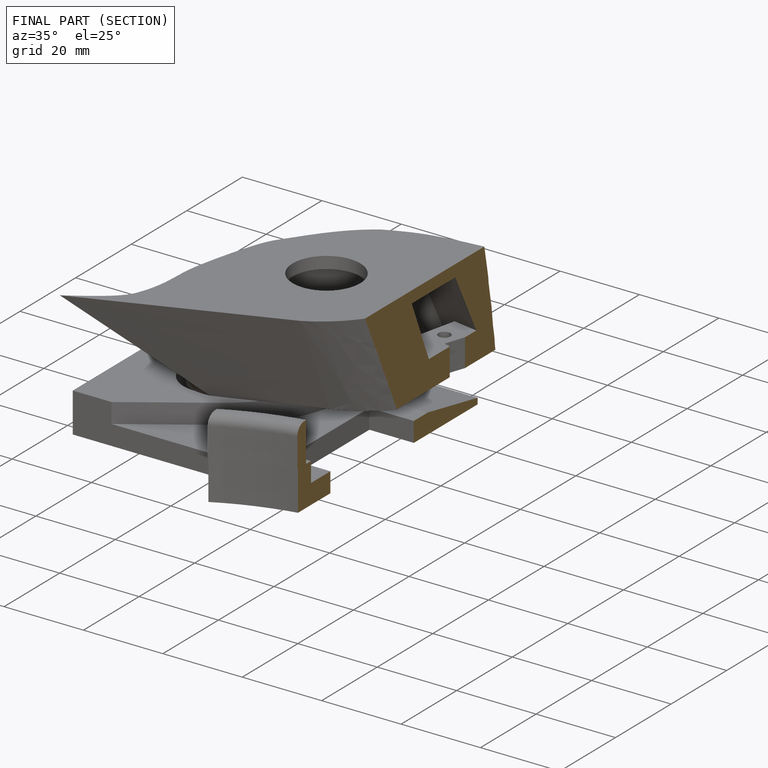
[diagram: finished part — half-section view (interior)]
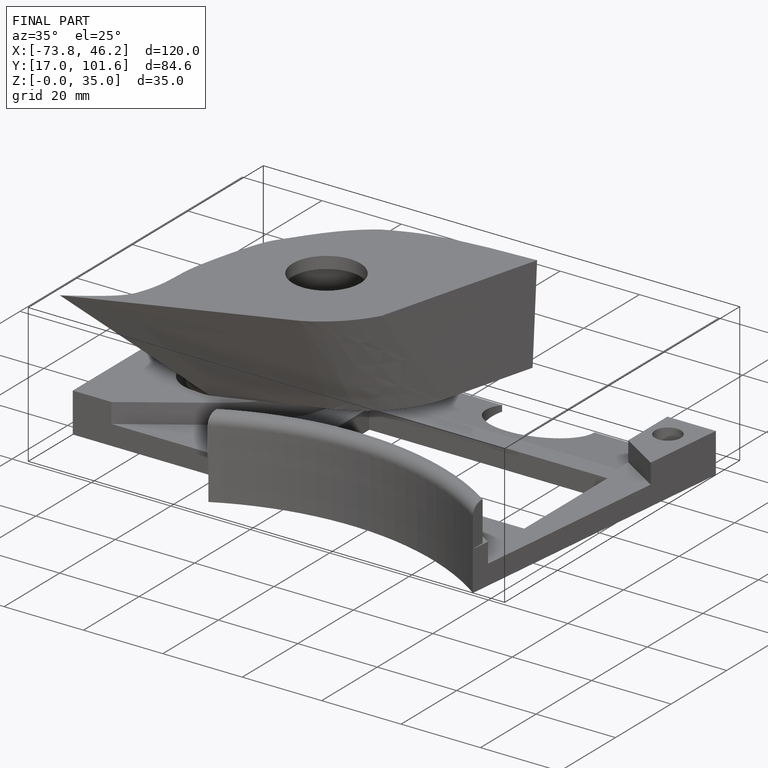
[diagram: finished part — iso view with bounding-box wireframe]
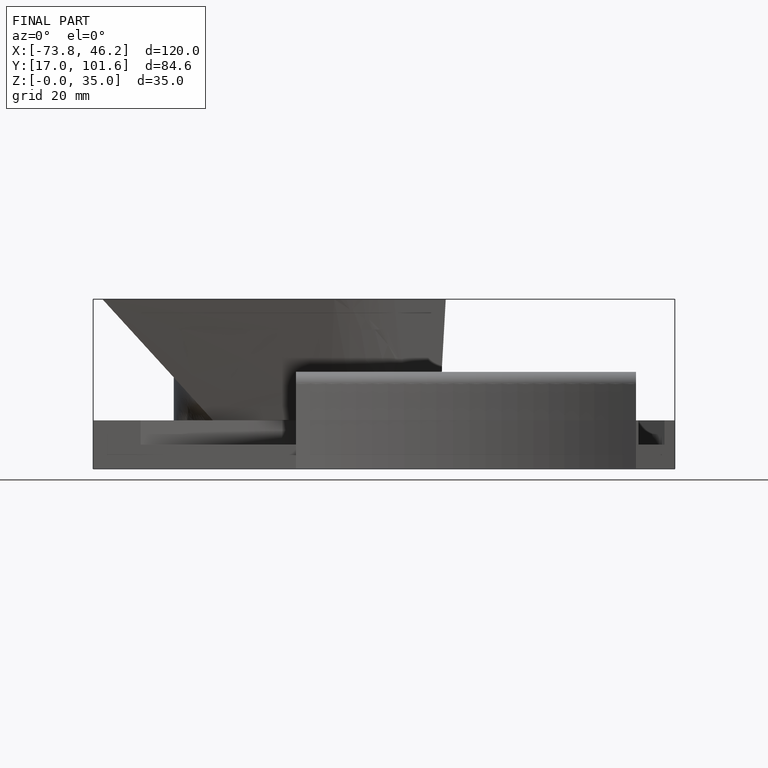
[diagram: finished part — front view with bounding-box wireframe]
